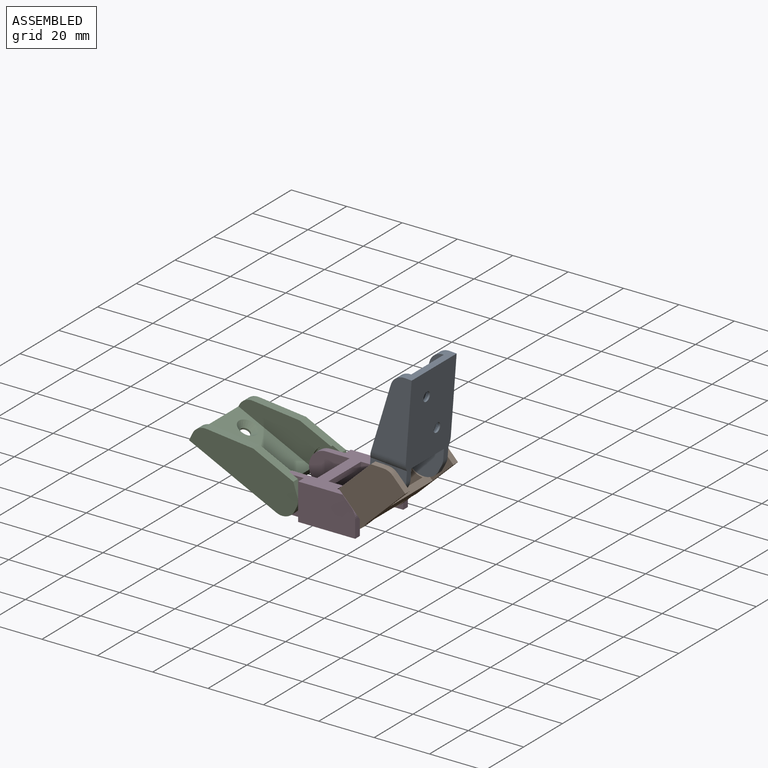
[diagram: assembled view]
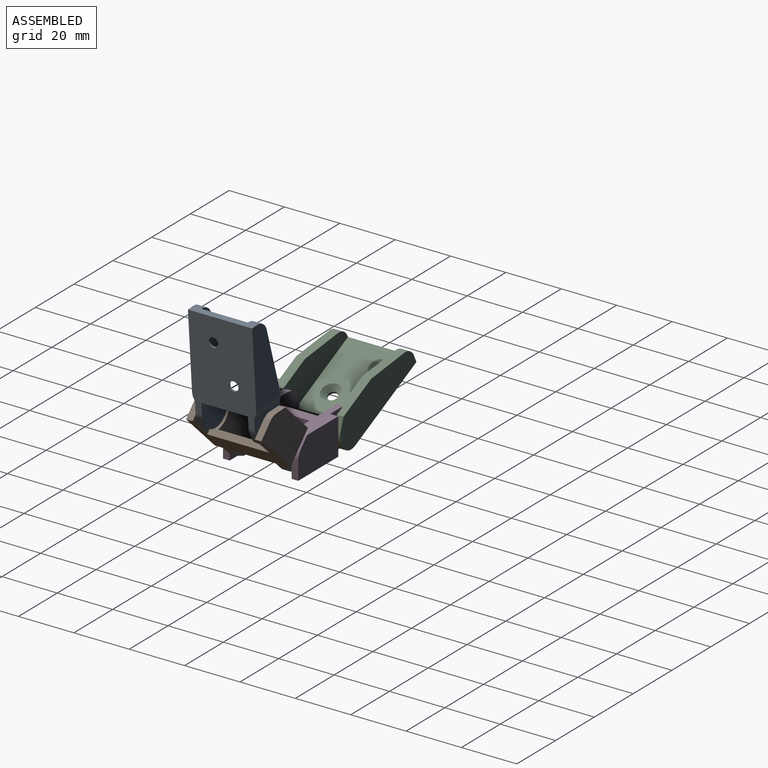
[diagram: assembled view, second angle]
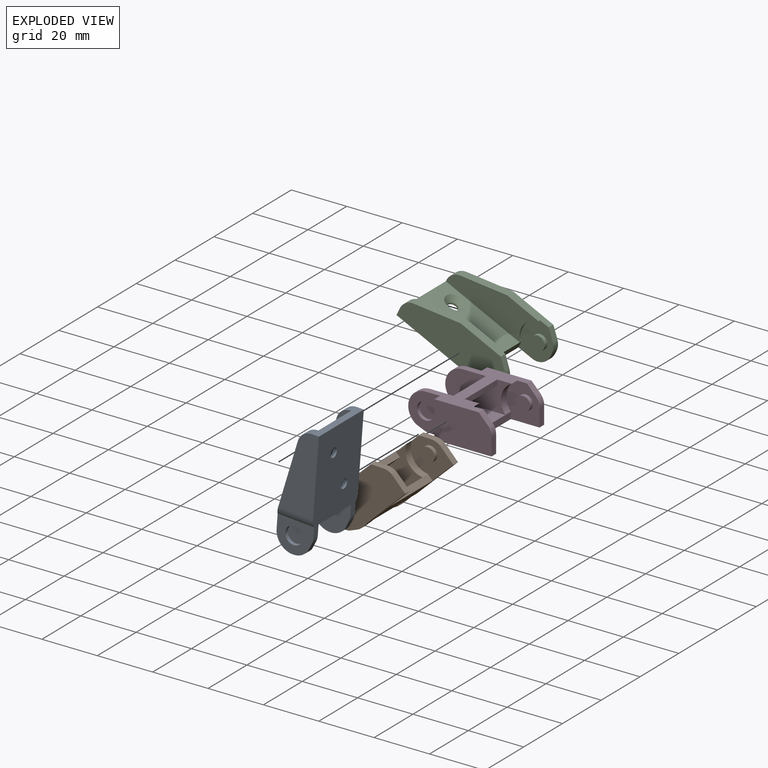
[diagram: exploded view]
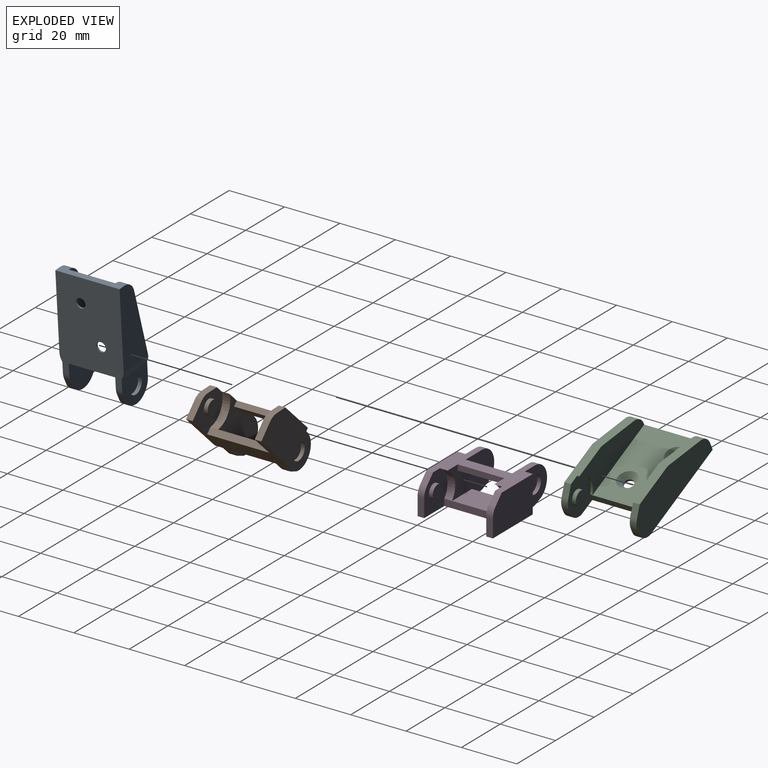
[diagram: exploded view, second angle]
ASSEMBLY  parts=4 mates=3
PART A: 31 faces, bbox 42.1x23.2x13.2 mm
  f0: plane 26.68x5.93mm, normal (0.22,0,0.98), area 86.6mm2, adj f3,f6,f10,f13,f14
  f1: plane 34.38x23.2mm, normal (0,0,-1), area 707.5mm2, adj f2,f6,f7,f10,f12,f13,f19,f20
  f2: plane 23.2x2.39mm, normal (1,0,0), area 55.4mm2, adj f1,f10,f14,f23
  f3: plane 5.2x2.3mm, normal (0,0,1), area 12mm2, adj f0,f5,f6,f7
  f4: plane 2.94x2.3mm, normal (-0.39,0,-0.92), area 7.3mm2, adj f5,f6,f7,f26
  f5: cylinder r=6.3mm len=11.56mm, axis (0,1,0), area 37.1mm2, adj f3,f4,f6,f7
  f6: plane 42.1x13.2mm, normal (0,1,0), area 354.3mm2, adj f0,f1,f3,f4,f5,f11,f12,f14
  f7: plane 13.2x11.5mm, normal (0,-1,0), area 99.8mm2, adj f1,f3,f4,f5,f8,f13,f26
  f8: cylinder r=3.15mm len=6.3mm, axis (0,-1,0), area 26.7mm2, adj f7,f9
  f9: plane 6.3x6.3mm, normal (0,-1,0), area 31.2mm2, adj f8
  f10: plane 27.74x12.56mm, normal (0,-1,0), area 259.9mm2, adj f0,f1,f2,f13,f14
  f11: plane 30.6x16.8mm, normal (0,0,1), area 438.4mm2, adj f6,f12,f14,f19,f28,f30
  f12: plane 16.8x2.4mm, normal (-1,0,0), area 40.3mm2, adj f1,f6,f11,f19
  f13: cylinder r=5mm len=13.2mm, axis (0,0,-1), area 39.3mm2, adj f0,f1,f7,f10
  f14: cylinder r=5mm len=23.2mm, axis (0,-1,0), area 43.5mm2, adj f0,f2,f6,f10,f11,f15,f19,f23
  f15: plane 26.68x5.93mm, normal (0.22,0,0.98), area 86.6mm2, adj f14,f16,f19,f23,f24
  f16: plane 5.2x2.3mm, normal (0,0,1), area 12mm2, adj f15,f18,f19,f20
  f17: plane 2.94x2.3mm, normal (-0.39,0,-0.92), area 7.3mm2, adj f18,f19,f20,f25
  f18: cylinder r=6.3mm len=11.56mm, axis (0,-1,0), area 37.1mm2, adj f16,f17,f19,f20
  f19: plane 42.1x13.2mm, normal (0,-1,0), area 354.3mm2, adj f1,f11,f12,f14,f15,f16,f17,f18
  f20: plane 13.2x11.5mm, normal (0,1,0), area 99.8mm2, adj f1,f16,f17,f18,f21,f24,f25
  f21: cylinder r=3.15mm len=6.3mm, axis (0,1,0), area 26.7mm2, adj f20,f22
  f22: plane 6.3x6.3mm, normal (0,1,0), area 31.2mm2, adj f21
  f23: plane 27.74x12.56mm, normal (0,1,0), area 259.9mm2, adj f1,f2,f14,f15,f24
  f24: cylinder r=5mm len=13.2mm, axis (0,0,-1), area 39.3mm2, adj f1,f15,f20,f23
  f25: cylinder r=5mm len=2.3mm, axis (0,-1,0), area 4.6mm2, adj f1,f17,f19,f20
  f26: cylinder r=5mm len=2.3mm, axis (0,1,0), area 4.6mm2, adj f1,f4,f6,f7
  f27: cylinder r=1.7mm len=3.4mm, axis (0,0,1), area 6.7mm2, adj f1,f28
  f28: cone r=1.7mm half-angle=45deg, axis (0,0,1), area 40.7mm2, adj f11,f27
  f29: cylinder r=1.7mm len=3.4mm, axis (0,0,1), area 6.7mm2, adj f1,f30
  f30: cone r=1.7mm half-angle=45deg, axis (0,0,1), area 40.7mm2, adj f11,f29
PART B: 40 faces, bbox 32.1x27.2x13.2 mm
  f0: plane 24.05x13.2mm, normal (0,1,0), area 225mm2, adj f1,f3,f4,f7,f14,f17,f18,f19
  f1: plane 2.94x2.3mm, normal (-0.39,0,-0.92), area 7.3mm2, adj f0,f3,f9,f37
  f2: plane 20.6x13.2mm, normal (0,-1,0), area 260.6mm2, adj f4,f5,f6,f7,f8,f39
  f3: cylinder r=6.3mm len=11.56mm, axis (0,1,0), area 37.1mm2, adj f0,f1,f7,f9
  f4: plane 27.2x24.38mm, normal (0,0,-1), area 345.6mm2, adj f0,f2,f5,f8,f9,f12,f13,f18
  f5: plane 6.45x2.4mm, normal (1,0,0), area 15.5mm2, adj f2,f4,f13,f39
  f6: plane 3.28x3.17mm, normal (0.72,0,0.69), area 10.9mm2, adj f2,f7,f13,f39
  f7: plane 27.2x21.23mm, normal (0,0,1), area 240mm2, adj f0,f2,f3,f6,f8,f9,f13,f14
  f8: plane 13.2x2.9mm, normal (-1,0,0), area 38.3mm2, adj f2,f4,f7,f9
  f9: plane 13.2x11.5mm, normal (0,-1,0), area 99.8mm2, adj f1,f3,f4,f7,f8,f10,f37
  f10: cylinder r=3.15mm len=6.3mm, axis (0,-1,0), area 26.7mm2, adj f9,f11
  f11: plane 6.3x6.3mm, normal (0,-1,0), area 31.2mm2, adj f10
  f12: plane 22.4x2.4mm, normal (1,0,0), area 53.8mm2, adj f4,f13,f14,f17,f32,f33
  f13: plane 13.2x12mm, normal (0,1,0), area 112.5mm2, adj f4,f5,f6,f7,f12,f14,f16,f39
  f14: cylinder r=7mm len=10.8mm, axis (0,-1,0), area 35.6mm2, adj f0,f7,f12,f13
  f15: plane 5.2x5.2mm, normal (0,1,0), area 21.2mm2, adj f16
  f16: cylinder r=2.6mm len=5.2mm, axis (0,-1,0), area 22.9mm2, adj f13,f15
  f17: plane 16.8x10.24mm, normal (0,0,1), area 172mm2, adj f0,f12,f18,f22
  f18: plane 16.8x2.4mm, normal (-1,0,0), area 40.3mm2, adj f0,f4,f17,f22
  f19: plane 16.8x2mm, normal (-1,0,0), area 33.6mm2, adj f0,f7,f20,f22
  f20: plane 16.8x4.1mm, normal (0,0,-1), area 68.9mm2, adj f0,f19,f21,f22
  f21: plane 16.8x2mm, normal (1,0,0), area 33.6mm2, adj f0,f7,f20,f22
  f22: plane 24.05x13.2mm, normal (0,-1,0), area 225mm2, adj f4,f7,f17,f18,f19,f20,f21,f23
  f23: plane 2.94x2.3mm, normal (-0.39,0,-0.92), area 7.3mm2, adj f22,f25,f29,f36
  f24: plane 20.6x13.2mm, normal (0,1,0), area 260.6mm2, adj f4,f7,f26,f27,f28,f38
  f25: cylinder r=6.3mm len=11.56mm, axis (0,-1,0), area 37.1mm2, adj f7,f22,f23,f29
  f26: plane 6.45x2.4mm, normal (1,0,0), area 15.5mm2, adj f4,f24,f32,f38
  f27: plane 3.28x3.17mm, normal (0.72,0,0.69), area 10.9mm2, adj f7,f24,f32,f38
  f28: plane 13.2x2.9mm, normal (-1,0,0), area 38.3mm2, adj f4,f7,f24,f29
  f29: plane 13.2x11.5mm, normal (0,1,0), area 99.8mm2, adj f4,f7,f23,f25,f28,f30,f36
  f30: cylinder r=3.15mm len=6.3mm, axis (0,1,0), area 26.7mm2, adj f29,f31
  f31: plane 6.3x6.3mm, normal (0,1,0), area 31.2mm2, adj f30
  f32: plane 13.2x12mm, normal (0,-1,0), area 112.5mm2, adj f4,f7,f12,f26,f27,f33,f35,f38
  f33: cylinder r=7mm len=10.8mm, axis (0,1,0), area 35.6mm2, adj f7,f12,f22,f32
  f34: plane 5.2x5.2mm, normal (0,-1,0), area 21.2mm2, adj f35
  f35: cylinder r=2.6mm len=5.2mm, axis (0,1,0), area 22.9mm2, adj f32,f34
  f36: cylinder r=5mm len=2.3mm, axis (0,-1,0), area 4.6mm2, adj f4,f22,f23,f29
  f37: cylinder r=5mm len=2.3mm, axis (0,1,0), area 4.6mm2, adj f0,f1,f4,f9
  f38: cylinder r=5mm len=3.47mm, axis (0,1,0), area 9.2mm2, adj f24,f26,f27,f32
  f39: cylinder r=5mm len=3.47mm, axis (0,-1,0), area 9.2mm2, adj f2,f5,f6,f13
PART C: 34 faces, bbox 40x27.2x13.2 mm
  f0: plane 35x27.2mm, normal (0,0,-1), area 813.7mm2, adj f5,f6,f8,f9,f18,f20,f25,f26
  f1: plane 2.4x1.45mm, normal (1,0,0), area 3.5mm2, adj f6,f9,f26,f29
  f2: plane 3.28x3.17mm, normal (0.72,0,0.69), area 10.9mm2, adj f3,f6,f9,f29
  f3: plane 16.03x3.2mm, normal (0,0,1), area 48.5mm2, adj f2,f4,f6,f7,f9,f13
  f4: plane 16.05x5.63mm, normal (-0.33,0,0.94), area 54.4mm2, adj f3,f6,f13,f27
  f5: plane 27.2x2.85mm, normal (-1,0,0), area 68.2mm2, adj f0,f6,f12,f13,f18,f23,f24,f27
  f6: plane 40x13.2mm, normal (0,-1,0), area 443.1mm2, adj f0,f1,f2,f3,f4,f5,f26,f27
  f7: cylinder r=7mm len=10.8mm, axis (0,-1,0), area 10.2mm2, adj f3,f8,f9,f13
  f8: plane 22.4x2.4mm, normal (1,0,0), area 53.8mm2, adj f0,f7,f9,f12,f19,f20
  f9: plane 13.2x12mm, normal (0,1,0), area 107.2mm2, adj f0,f1,f2,f3,f7,f8,f11,f26
  f10: plane 5.2x5.2mm, normal (0,1,0), area 21.2mm2, adj f11
  f11: cylinder r=2.6mm len=5.2mm, axis (0,-1,0), area 22.9mm2, adj f9,f10
  f12: plane 29.64x20.8mm, normal (0,0,1), area 540.8mm2, adj f5,f8,f13,f23,f31,f33
  f13: plane 31.95x10.8mm, normal (0,1,0), area 243.5mm2, adj f3,f4,f5,f7,f12,f27
  f14: plane 2.4x1.45mm, normal (1,0,0), area 3.5mm2, adj f18,f20,f25,f28
  f15: plane 3.28x3.17mm, normal (0.72,0,0.69), area 10.9mm2, adj f16,f18,f20,f28
  f16: plane 16.03x3.2mm, normal (0,0,1), area 48.5mm2, adj f15,f17,f18,f19,f20,f23
  f17: plane 16.05x5.63mm, normal (-0.33,0,0.94), area 54.4mm2, adj f16,f18,f23,f24
  f18: plane 40x13.2mm, normal (0,1,0), area 443.1mm2, adj f0,f5,f14,f15,f16,f17,f24,f25
  f19: cylinder r=7mm len=10.8mm, axis (0,1,0), area 10.2mm2, adj f8,f16,f20,f23
  f20: plane 13.2x12mm, normal (0,-1,0), area 107.2mm2, adj f0,f8,f14,f15,f16,f19,f22,f25
  f21: plane 5.2x5.2mm, normal (0,-1,0), area 21.2mm2, adj f22
  f22: cylinder r=2.6mm len=5.2mm, axis (0,1,0), area 22.9mm2, adj f20,f21
  f23: plane 31.95x10.8mm, normal (0,-1,0), area 243.5mm2, adj f5,f12,f16,f17,f19,f24
  f24: cylinder r=5mm len=4.72mm, axis (0,1,0), area 19.7mm2, adj f5,f17,f18,f23
  f25: cylinder r=5mm len=5mm, axis (0,1,0), area 18.8mm2, adj f0,f14,f18,f20
  f26: cylinder r=5mm len=5mm, axis (0,-1,0), area 18.8mm2, adj f0,f1,f6,f9
  f27: cylinder r=5mm len=4.72mm, axis (0,-1,0), area 19.7mm2, adj f4,f5,f6,f13
  f28: cylinder r=5mm len=3.47mm, axis (0,1,0), area 9.2mm2, adj f14,f15,f18,f20
  f29: cylinder r=5mm len=3.47mm, axis (0,-1,0), area 9.2mm2, adj f1,f2,f6,f9
  f30: cylinder r=1.7mm len=3.4mm, axis (0,0,1), area 6.7mm2, adj f0,f31
  f31: cone r=1.7mm half-angle=45deg, axis (0,0,1), area 40.7mm2, adj f12,f30
  f32: cylinder r=1.7mm len=3.4mm, axis (0,0,1), area 6.7mm2, adj f0,f33
  f33: cone r=1.7mm half-angle=45deg, axis (0,0,1), area 40.7mm2, adj f12,f32
PART D: same geometry as B
PLACE A rot(axis=(0,-1,0),85.6deg) t=(28.32,-10.23,26.75)mm
PLACE B rot(axis=(0,-1,0),43.7deg) t=(20.27,-9.78,9.07)mm
PLACE C rot(axis=(0,1,0),25.7deg) t=(-17.34,-8.88,5.94)mm
PLACE D t=(2.47,-9.33,1.6)mm fixed
MATE revolute B.f10 <-> D.f16  axis (0,-1,0) through (12.47,-8.13,1.6)mm
MATE revolute C.f11 <-> D.f10  axis (0,1,0) through (-8.33,-7.68,1.6)mm
MATE revolute A.f8 <-> B.f16  axis (0,-1,0) through (27.5,-8.58,15.98)mm
